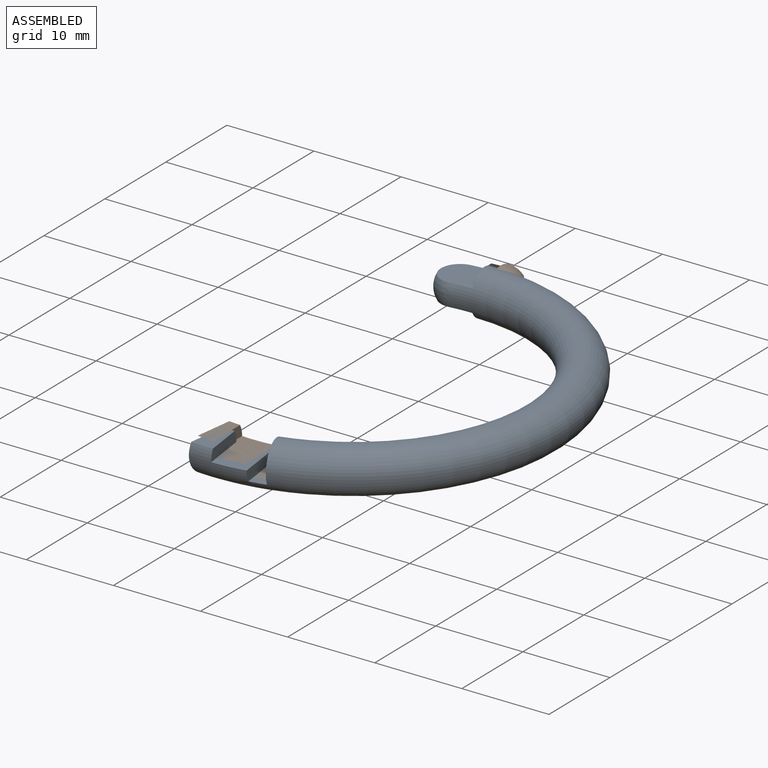
[diagram: assembled view]
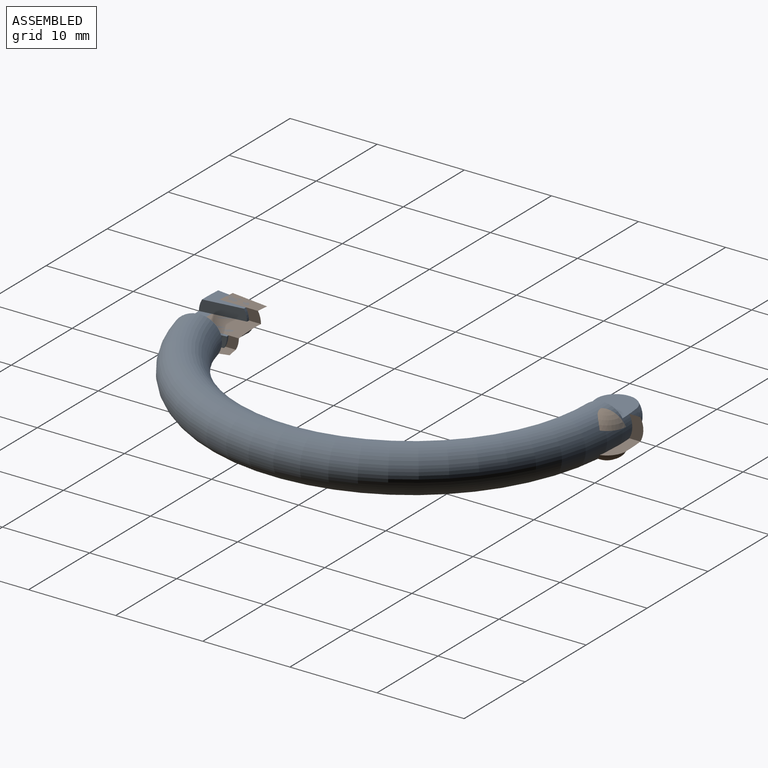
[diagram: assembled view, second angle]
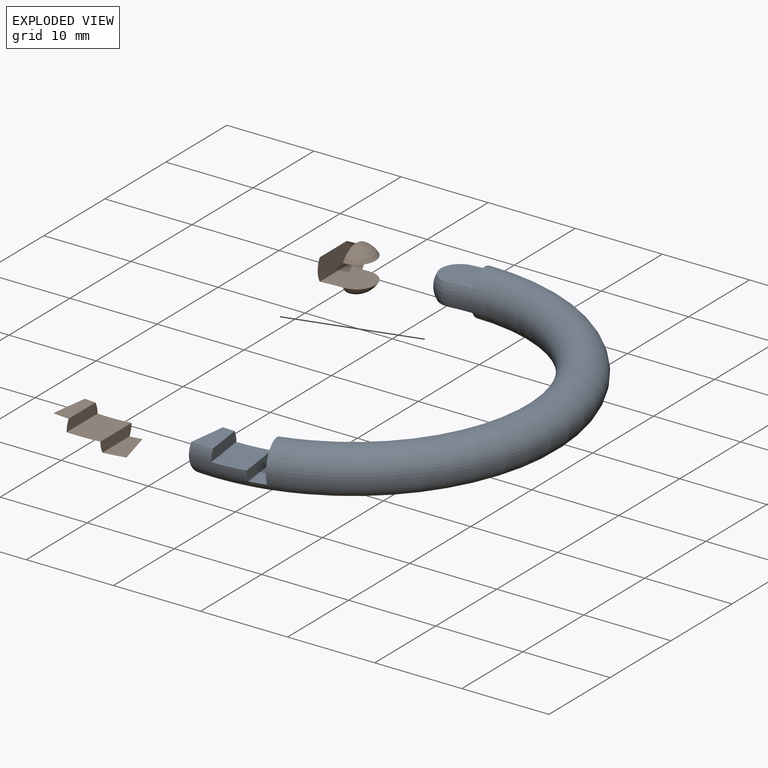
[diagram: exploded view]
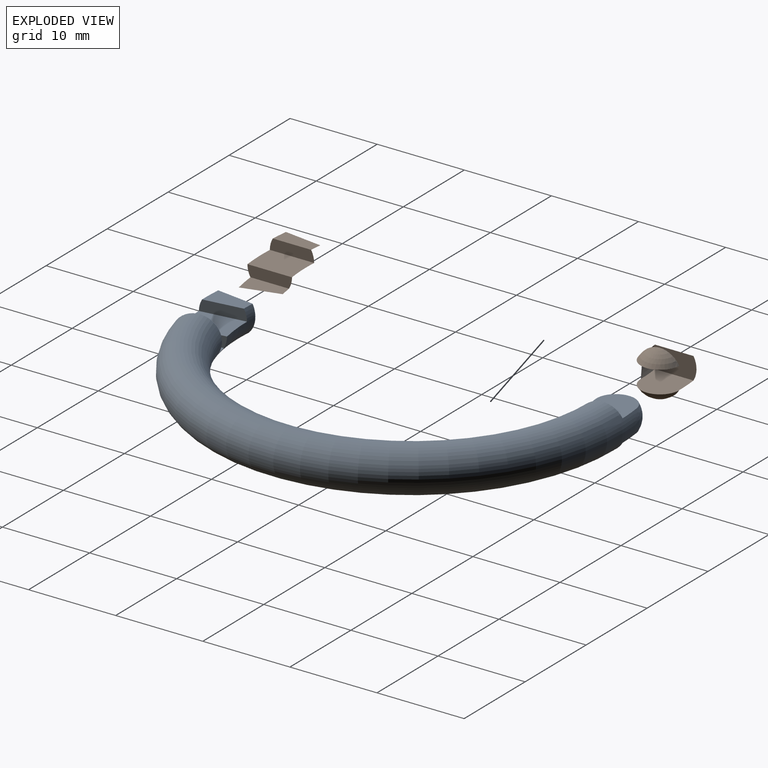
[diagram: exploded view, second angle]
ASSEMBLY  parts=2 mates=2
PART A: 14 faces, bbox 31.7x52.3x5.1 mm
  f0: torus R=21.59mm, axis (0,0,1), area 1067.2mm2, adj f1,f2,f3,f4,f5,f6,f7,f8
  f1: cylinder r=2.54mm len=3.05mm, axis (-0.26,0.97,0), area 2mm2, adj f0,f10
  f2: plane 4.66x2.5mm, normal (0,0,-1), area 8.6mm2, adj f0,f4,f10
  f3: sphere r=2.54mm, area 20.3mm2, adj f0,f7,f9
  f4: plane 5.14x1.29mm, normal (1,0,0), area 6.2mm2, adj f0,f2,f5
  f5: plane 5.25x3.81mm, normal (0,0,-1), area 19.4mm2, adj f0,f4,f11
  f6: plane 4.43x1.27mm, normal (-1,0,0), area 4mm2, adj f0,f7
  f7: plane 4.74x4.57mm, normal (0,0,-1), area 18.8mm2, adj f0,f3,f6
  f8: plane 4.43x1.27mm, normal (-1,0,0), area 4mm2, adj f0,f9
  f9: plane 4.74x4.57mm, normal (0,0,1), area 18.8mm2, adj f0,f3,f8
  f10: plane 4.92x3.4mm, normal (-0.97,-0.26,0), area 15.5mm2, adj f0,f1,f2
  f11: plane 5.1x1.28mm, normal (1,0,0), area 6.2mm2, adj f0,f5,f13
  f12: plane 5.03x3.81mm, normal (-0.99,0.13,0), area 16.3mm2, adj f0,f13
  f13: plane 4.54x1.9mm, normal (0,0,-1), area 7.1mm2, adj f0,f11,f12
PART B: 15 faces, bbox 18.6x58.8x15.2 mm
  f0: torus R=21.59mm, axis (0,0,1), area 34.9mm2, adj f1,f2,f3,f4,f5,f6,f7,f8
  f1: plane 15.28x11.43mm, normal (1,0,0), area 6.2mm2, adj f0,f2,f6
  f2: plane 5.25x3.81mm, normal (0,0,1), area 19.4mm2, adj f0,f1,f3
  f3: plane 5.1x1.28mm, normal (1,0,0), area 6.2mm2, adj f0,f2,f4
  f4: plane 4.54x1.9mm, normal (0,0,1), area 7.1mm2, adj f0,f3,f5
  f5: plane 5.03x3.81mm, normal (-0.99,0.13,0), area 16.3mm2, adj f0,f4
  f6: plane 14.82x12.64mm, normal (0,0,1), area 8.5mm2, adj f0,f1,f7
  f7: plane 4.95x3.44mm, normal (-0.97,-0.26,0), area 15.6mm2, adj f0,f6,f8
  f8: cylinder r=2.54mm len=3.01mm, axis (0.26,-0.97,0), area 2mm2, adj f0,f7
  f9: torus R=21.59mm, axis (0,0,1), area 3.6mm2, adj f10,f11,f12,f13,f14
  f10: sphere r=2.54mm, area 10.1mm2, adj f9,f11
  f11: plane 14.9x14.73mm, normal (0,0,-1), area 18.8mm2, adj f9,f10,f12
  f12: plane 5.12x2.54mm, normal (1,0,0), area 12.4mm2, adj f9,f11,f13
  f13: plane 4.74x4.57mm, normal (0,0,1), area 18.8mm2, adj f9,f12,f14
  f14: sphere r=2.54mm, area 10.1mm2, adj f9,f13
PLACE A rot(axis=(1,0.06,0),180deg) t=(-4.55,-4.13,14.97)mm
PLACE B t=(-3.7,-2.79,9.89)mm fixed
MATE planar B.f7 <-> A.f12  axis (0.97,0.26,0) through (0.76,-23.92,12.78)mm
MATE planar A.f9 <-> B.f13  axis (0,0,-1) through (-6.92,17.3,11.16)mm
